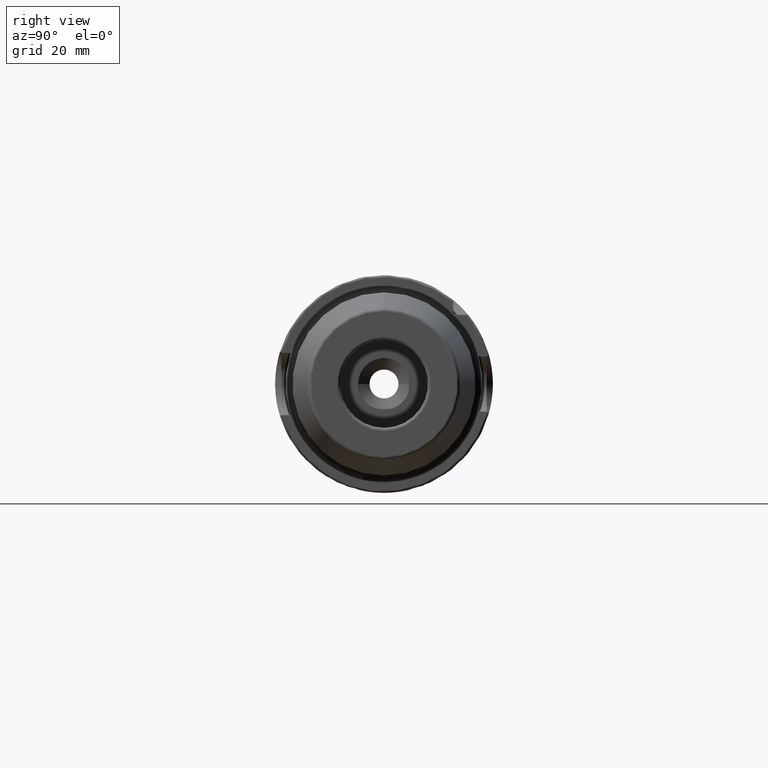
[diagram: clean part render]
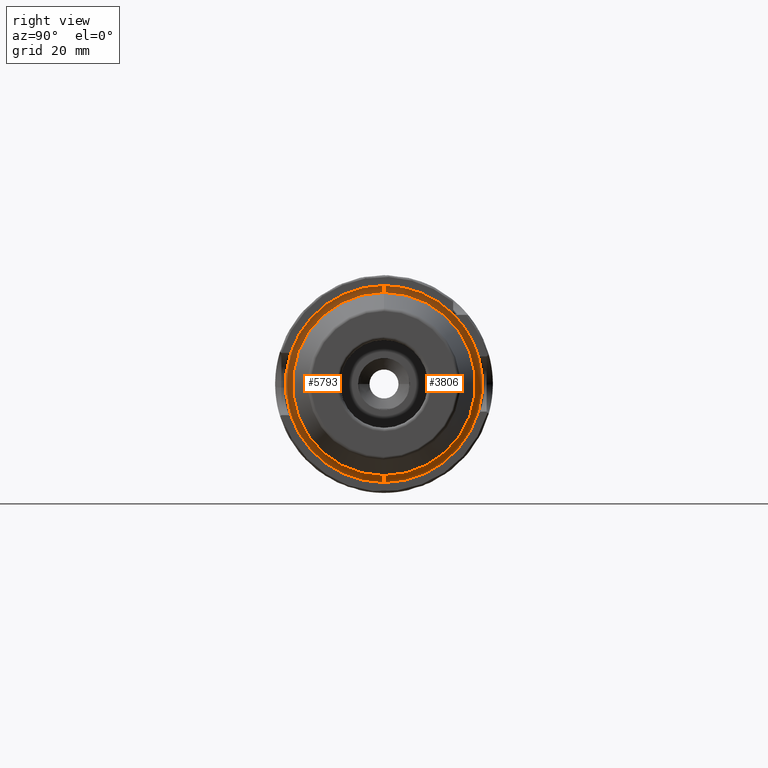
[diagram: same view with one multi-face feature highlighted, each face labeled with its STEP entity id]
A machine part, right view. The highlighted faces form ONE feature: a constant-radius fillet chain: 2 tangent blend faces with common blend radius 2 mm. The faces share edges in the B-rep.
Their STEP definitions:
[1] entity #5793 (Torus):
#647=CARTESIAN_POINT('',(2.6E1,0.E0,0.E0));
#648=DIRECTION('',(1.E0,0.E0,0.E0));
#649=DIRECTION('',(0.E0,-9.488292830168E-1,-3.157894736842E-1));
#650=AXIS2_PLACEMENT_3D('',#647,#648,#649);
#674=CARTESIAN_POINT('',(2.6E1,0.E0,0.E0));
#675=DIRECTION('',(1.E0,0.E0,0.E0));
#676=DIRECTION('',(0.E0,0.E0,1.E0));
#677=AXIS2_PLACEMENT_3D('',#674,#675,#676);
#2100=CARTESIAN_POINT('',(2.6E1,0.E0,0.E0));
#2101=DIRECTION('',(-1.E0,0.E0,0.E0));
#2102=DIRECTION('',(0.E0,-9.488292830168E-1,-3.157894736842E-1));
#2103=AXIS2_PLACEMENT_3D('',#2100,#2101,#2102);
#2429=CARTESIAN_POINT('',(2.8E1,0.E0,2.85E1));
#2430=DIRECTION('',(0.E0,1.E0,0.E0));
#2431=DIRECTION('',(0.E0,0.E0,-1.E0));
#2432=AXIS2_PLACEMENT_3D('',#2429,#2430,#2431);
#2434=CARTESIAN_POINT('',(2.8E1,0.E0,0.E0));
#2435=DIRECTION('',(-1.E0,0.E0,0.E0));
#2436=DIRECTION('',(0.E0,0.E0,-1.E0));
#2437=AXIS2_PLACEMENT_3D('',#2434,#2435,#2436);
#2439=CARTESIAN_POINT('',(2.8E1,0.E0,-2.85E1));
#2440=DIRECTION('',(0.E0,-1.E0,0.E0));
#2441=DIRECTION('',(0.E0,0.E0,1.E0));
#2442=AXIS2_PLACEMENT_3D('',#2439,#2440,#2441);
#3004=CARTESIAN_POINT('',(2.8E1,0.E0,-2.65E1));
#3005=VERTEX_POINT('',#3004);
#3026=CARTESIAN_POINT('',(2.8E1,0.E0,2.65E1));
#3027=VERTEX_POINT('',#3026);
#3028=CARTESIAN_POINT('',(2.6E1,0.E0,-2.85E1));
#3030=VERTEX_POINT('',#3028);
#3037=CARTESIAN_POINT('',(2.6E1,0.E0,2.85E1));
#3039=VERTEX_POINT('',#3037);
#3040=CARTESIAN_POINT('',(2.6E1,-2.704163456598E1,9.E0));
#3041=VERTEX_POINT('',#3040);
#3042=CARTESIAN_POINT('',(2.6E1,-2.704163456598E1,-9.E0));
#3043=VERTEX_POINT('',#3042);
#5780=CARTESIAN_POINT('',(2.8E1,0.E0,0.E0));
#5781=DIRECTION('',(1.E0,0.E0,0.E0));
#5782=DIRECTION('',(0.E0,0.E0,1.E0));
#5783=AXIS2_PLACEMENT_3D('',#5780,#5781,#5782);
#5784=TOROIDAL_SURFACE('',#5783,2.85E1,2.E0);
#5785=ORIENTED_EDGE('',*,*,#3849,.F.);
#5786=ORIENTED_EDGE('',*,*,#3794,.F.);
#5787=ORIENTED_EDGE('',*,*,#3763,.F.);
#5788=ORIENTED_EDGE('',*,*,#3791,.T.);
#5789=ORIENTED_EDGE('',*,*,#3821,.F.);
#5790=ORIENTED_EDGE('',*,*,#5424,.T.);
#5791=EDGE_LOOP('',(#5785,#5786,#5787,#5788,#5789,#5790));
#5792=FACE_OUTER_BOUND('',#5791,.F.);
#5793=ADVANCED_FACE('',(#5792),#5784,.F.);
#651=CIRCLE('',#650,2.85E1);
#678=CIRCLE('',#677,2.85E1);
#2104=CIRCLE('',#2103,2.85E1);
#2433=CIRCLE('',#2432,2.E0);
#2438=CIRCLE('',#2437,2.65E1);
#2443=CIRCLE('',#2442,2.E0);
#3763=EDGE_CURVE('',#3005,#3027,#2438,.T.);
#3791=EDGE_CURVE('',#3005,#3030,#2443,.T.);
#3794=EDGE_CURVE('',#3027,#3039,#2433,.T.);
#3821=EDGE_CURVE('',#3043,#3030,#651,.T.);
#3849=EDGE_CURVE('',#3039,#3041,#678,.T.);
#5424=EDGE_CURVE('',#3043,#3041,#2104,.T.);
[2] entity #3806 (Torus):
#625=CARTESIAN_POINT('',(2.8E1,0.E0,0.E0));
#626=DIRECTION('',(1.E0,0.E0,0.E0));
#627=DIRECTION('',(0.E0,0.E0,-1.E0));
#628=AXIS2_PLACEMENT_3D('',#625,#626,#627);
#630=CARTESIAN_POINT('',(2.6E1,0.E0,0.E0));
#631=DIRECTION('',(1.E0,0.E0,0.E0));
#632=DIRECTION('',(0.E0,0.E0,-1.E0));
#633=AXIS2_PLACEMENT_3D('',#630,#631,#632);
#652=CARTESIAN_POINT('',(2.6E1,0.E0,0.E0));
#653=DIRECTION('',(1.E0,0.E0,0.E0));
#654=DIRECTION('',(0.E0,9.597950432695E-1,2.807017543860E-1));
#655=AXIS2_PLACEMENT_3D('',#652,#653,#654);
#669=CARTESIAN_POINT('',(2.6E1,0.E0,0.E0));
#670=DIRECTION('',(1.E0,0.E0,0.E0));
#671=DIRECTION('',(0.E0,7.017543859649E-1,7.124189650613E-1));
#672=AXIS2_PLACEMENT_3D('',#669,#670,#671);
#2095=CARTESIAN_POINT('',(2.6E1,0.E0,0.E0));
#2096=DIRECTION('',(1.E0,0.E0,0.E0));
#2097=DIRECTION('',(0.E0,9.597950432695E-1,-2.807017543860E-1));
#2098=AXIS2_PLACEMENT_3D('',#2095,#2096,#2097);
#2105=CARTESIAN_POINT('',(2.6E1,0.E0,0.E0));
#2106=DIRECTION('',(1.E0,0.E0,0.E0));
#2107=DIRECTION('',(0.E0,7.124189650613E-1,7.017543859649E-1));
#2108=AXIS2_PLACEMENT_3D('',#2105,#2106,#2107);
#2429=CARTESIAN_POINT('',(2.8E1,0.E0,2.85E1));
#2430=DIRECTION('',(0.E0,1.E0,0.E0));
#2431=DIRECTION('',(0.E0,0.E0,-1.E0));
#2432=AXIS2_PLACEMENT_3D('',#2429,#2430,#2431);
#2439=CARTESIAN_POINT('',(2.8E1,0.E0,-2.85E1));
#2440=DIRECTION('',(0.E0,-1.E0,0.E0));
#2441=DIRECTION('',(0.E0,0.E0,1.E0));
#2442=AXIS2_PLACEMENT_3D('',#2439,#2440,#2441);
#3004=CARTESIAN_POINT('',(2.8E1,0.E0,-2.65E1));
#3005=VERTEX_POINT('',#3004);
#3026=CARTESIAN_POINT('',(2.8E1,0.E0,2.65E1));
#3027=VERTEX_POINT('',#3026);
#3028=CARTESIAN_POINT('',(2.6E1,0.E0,-2.85E1));
#3029=CARTESIAN_POINT('',(2.6E1,2.735415873318E1,-8.E0));
#3030=VERTEX_POINT('',#3028);
#3031=VERTEX_POINT('',#3029);
#3032=CARTESIAN_POINT('',(2.6E1,2.735415873318E1,8.E0));
#3033=CARTESIAN_POINT('',(2.6E1,2.030394050425E1,2.E1));
#3034=VERTEX_POINT('',#3032);
#3035=VERTEX_POINT('',#3033);
#3036=CARTESIAN_POINT('',(2.6E1,2.E1,2.030394050425E1));
#3037=CARTESIAN_POINT('',(2.6E1,0.E0,2.85E1));
#3038=VERTEX_POINT('',#3036);
#3039=VERTEX_POINT('',#3037);
#3784=CARTESIAN_POINT('',(2.8E1,0.E0,0.E0));
#3785=DIRECTION('',(1.E0,0.E0,0.E0));
#3786=DIRECTION('',(0.E0,0.E0,1.E0));
#3787=AXIS2_PLACEMENT_3D('',#3784,#3785,#3786);
#3788=TOROIDAL_SURFACE('',#3787,2.85E1,2.E0);
#3790=ORIENTED_EDGE('',*,*,#3789,.F.);
#3792=ORIENTED_EDGE('',*,*,#3791,.F.);
#3793=ORIENTED_EDGE('',*,*,#3779,.T.);
#3795=ORIENTED_EDGE('',*,*,#3794,.T.);
#3797=ORIENTED_EDGE('',*,*,#3796,.F.);
#3799=ORIENTED_EDGE('',*,*,#3798,.F.);
#3801=ORIENTED_EDGE('',*,*,#3800,.F.);
#3803=ORIENTED_EDGE('',*,*,#3802,.F.);
#3804=EDGE_LOOP('',(#3790,#3792,#3793,#3795,#3797,#3799,#3801,#3803));
#3805=FACE_OUTER_BOUND('',#3804,.F.);
#3806=ADVANCED_FACE('',(#3805),#3788,.F.);
#629=CIRCLE('',#628,2.65E1);
#634=CIRCLE('',#633,2.85E1);
#656=CIRCLE('',#655,2.85E1);
#673=CIRCLE('',#672,2.85E1);
#2099=CIRCLE('',#2098,2.85E1);
#2109=CIRCLE('',#2108,2.85E1);
#2433=CIRCLE('',#2432,2.E0);
#2443=CIRCLE('',#2442,2.E0);
#3779=EDGE_CURVE('',#3005,#3027,#629,.T.);
#3789=EDGE_CURVE('',#3030,#3031,#634,.T.);
#3791=EDGE_CURVE('',#3005,#3030,#2443,.T.);
#3794=EDGE_CURVE('',#3027,#3039,#2433,.T.);
#3796=EDGE_CURVE('',#3038,#3039,#673,.T.);
#3798=EDGE_CURVE('',#3035,#3038,#2109,.T.);
#3800=EDGE_CURVE('',#3034,#3035,#656,.T.);
#3802=EDGE_CURVE('',#3031,#3034,#2099,.T.);